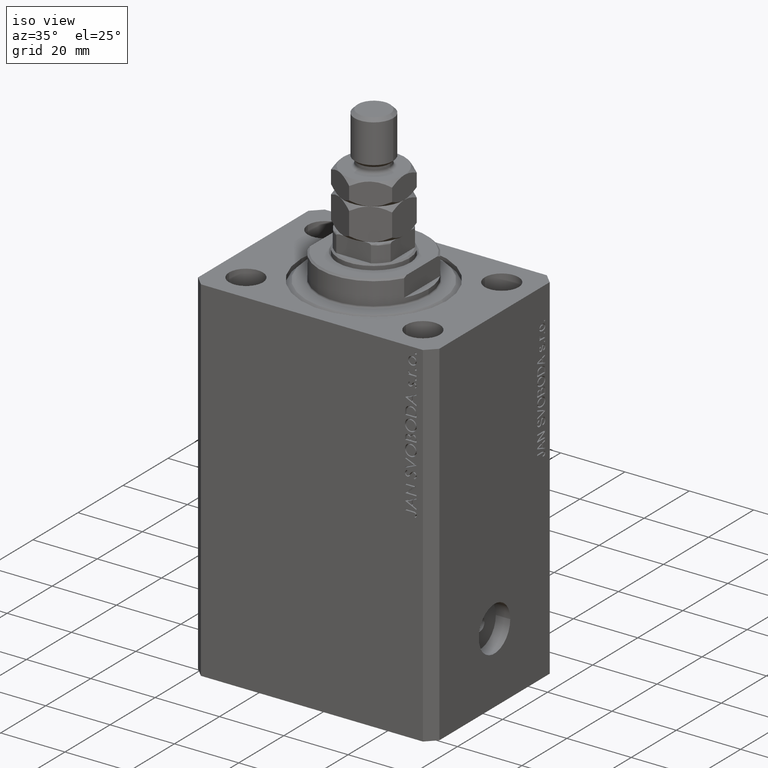
[diagram: clean part render]
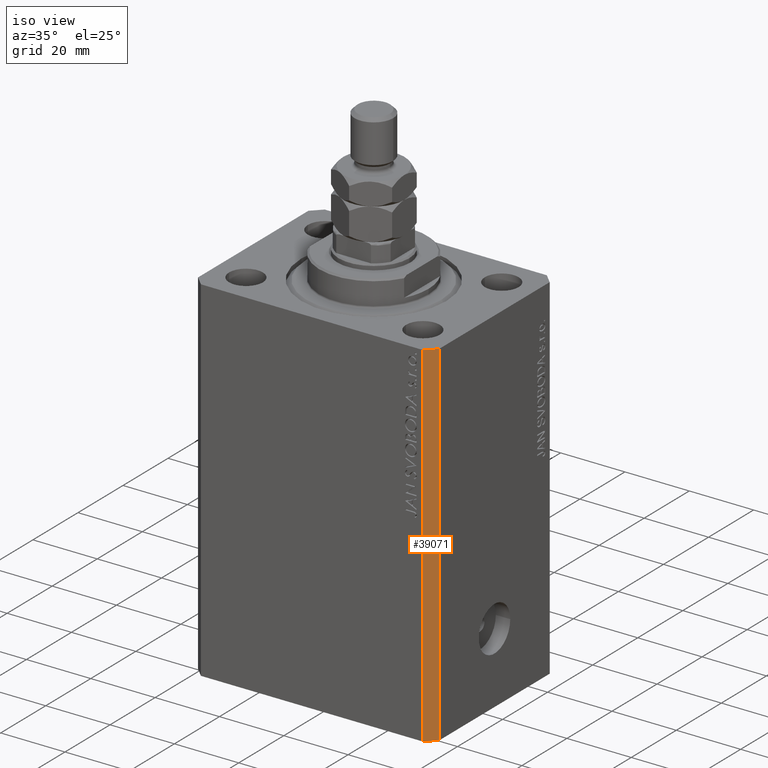
[diagram: same view with one face highlighted and labeled with its STEP entity id]
A machine part, iso view. The second image highlights one B-rep face of the part: STEP entity #39071.
In plain terms, the highlighted planar face has unit normal (0.7071, -0.7071, 0).
Its self-contained STEP definition (entity closure, byte-faithful):
#1842 = CARTESIAN_POINT ( 'NONE',  ( 37.49999999999999289, -24.50000000000000000, -110.0000000000000000 ) ) ;
#5308 = ORIENTED_EDGE ( 'NONE', *, *, #9183, .F. ) ;
#6159 = ORIENTED_EDGE ( 'NONE', *, *, #44160, .T. ) ;
#6437 = VERTEX_POINT ( 'NONE', #1842 ) ;
#7439 = LINE ( 'NONE', #26222, #16649 ) ;
#8699 = DIRECTION ( 'NONE',  ( 0.7071067811865474617, 0.7071067811865474617, 0.000000000000000000 ) ) ;
#9097 = DIRECTION ( 'NONE',  ( 0.000000000000000000, 0.000000000000000000, 1.000000000000000000 ) ) ;
#9183 = EDGE_CURVE ( 'NONE', #34961, #16601, #34822, .T. ) ;
#9359 = CARTESIAN_POINT ( 'NONE',  ( 34.49999999999999289, -27.49999999999999645, 0.000000000000000000 ) ) ;
#11161 = VECTOR ( 'NONE', #39275, 1000.000000000000114 ) ;
#12819 = LINE ( 'NONE', #9359, #11161 ) ;
#13111 = FACE_OUTER_BOUND ( 'NONE', #44272, .T. ) ;
#16360 = CARTESIAN_POINT ( 'NONE',  ( 34.49999999999999289, -27.49999999999999645, -110.0000000000000000 ) ) ;
#16601 = VERTEX_POINT ( 'NONE', #37208 ) ;
#16649 = VECTOR ( 'NONE', #41560, 1000.000000000000114 ) ;
#19866 = DIRECTION ( 'NONE',  ( 0.000000000000000000, 0.000000000000000000, 1.000000000000000000 ) ) ;
#24689 = AXIS2_PLACEMENT_3D ( 'NONE', #28190, #43277, #8699 ) ;
#26222 = CARTESIAN_POINT ( 'NONE',  ( 34.49999999999999289, -27.49999999999999645, -110.0000000000000000 ) ) ;
#27060 = CARTESIAN_POINT ( 'NONE',  ( 37.49999999999999289, -24.50000000000000000, 0.000000000000000000 ) ) ;
#28190 = CARTESIAN_POINT ( 'NONE',  ( 34.49999999999999289, -27.49999999999999645, -110.0000000000000000 ) ) ;
#28485 = LINE ( 'NONE', #35415, #33523 ) ;
#29609 = ORIENTED_EDGE ( 'NONE', *, *, #35111, .T. ) ;
#31813 = CARTESIAN_POINT ( 'NONE',  ( 34.49999999999999289, -27.49999999999999645, -110.0000000000000000 ) ) ;
#32819 = VERTEX_POINT ( 'NONE', #27060 ) ;
#33523 = VECTOR ( 'NONE', #19866, 1000.000000000000000 ) ;
#33994 = VECTOR ( 'NONE', #9097, 1000.000000000000000 ) ;
#34822 = LINE ( 'NONE', #31813, #33994 ) ;
#34961 = VERTEX_POINT ( 'NONE', #16360 ) ;
#35111 = EDGE_CURVE ( 'NONE', #34961, #6437, #7439, .T. ) ;
#35415 = CARTESIAN_POINT ( 'NONE',  ( 37.49999999999999289, -24.50000000000000000, -110.0000000000000000 ) ) ;
#36154 = EDGE_CURVE ( 'NONE', #16601, #32819, #12819, .T. ) ;
#37208 = CARTESIAN_POINT ( 'NONE',  ( 34.49999999999999289, -27.49999999999999645, 0.000000000000000000 ) ) ;
#39071 = ADVANCED_FACE ( 'NONE', ( #13111 ), #42318, .T. ) ;
#39275 = DIRECTION ( 'NONE',  ( 0.7071067811865474617, 0.7071067811865474617, 0.000000000000000000 ) ) ;
#41560 = DIRECTION ( 'NONE',  ( 0.7071067811865474617, 0.7071067811865474617, 0.000000000000000000 ) ) ;
#42318 = PLANE ( 'NONE',  #24689 ) ;
#43277 = DIRECTION ( 'NONE',  ( 0.7071067811865475727, -0.7071067811865475727, 0.000000000000000000 ) ) ;
#44160 = EDGE_CURVE ( 'NONE', #6437, #32819, #28485, .T. ) ;
#44272 = EDGE_LOOP ( 'NONE', ( #47523, #5308, #29609, #6159 ) ) ;
#47523 = ORIENTED_EDGE ( 'NONE', *, *, #36154, .F. ) ;